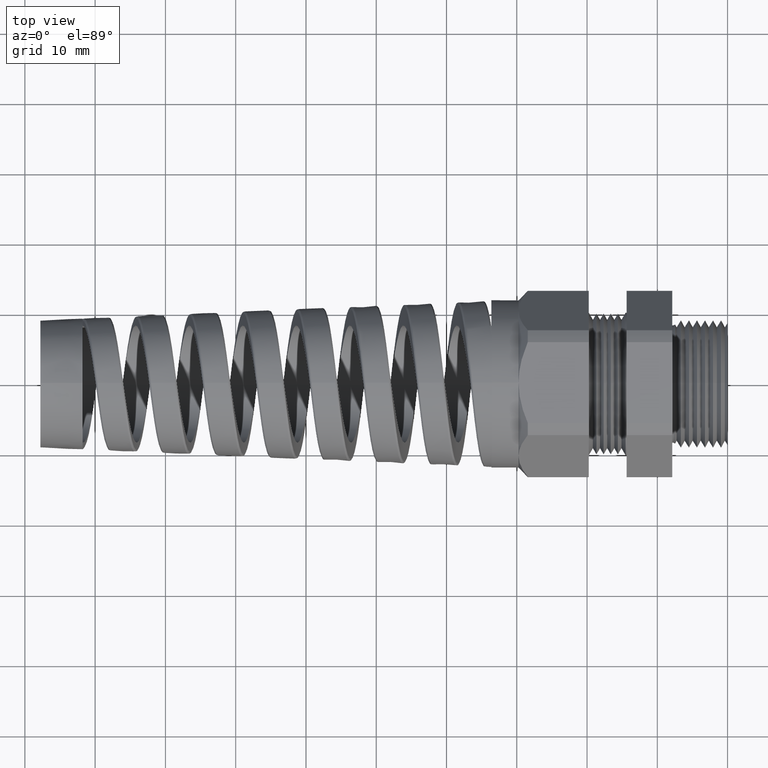
[diagram: clean part render]
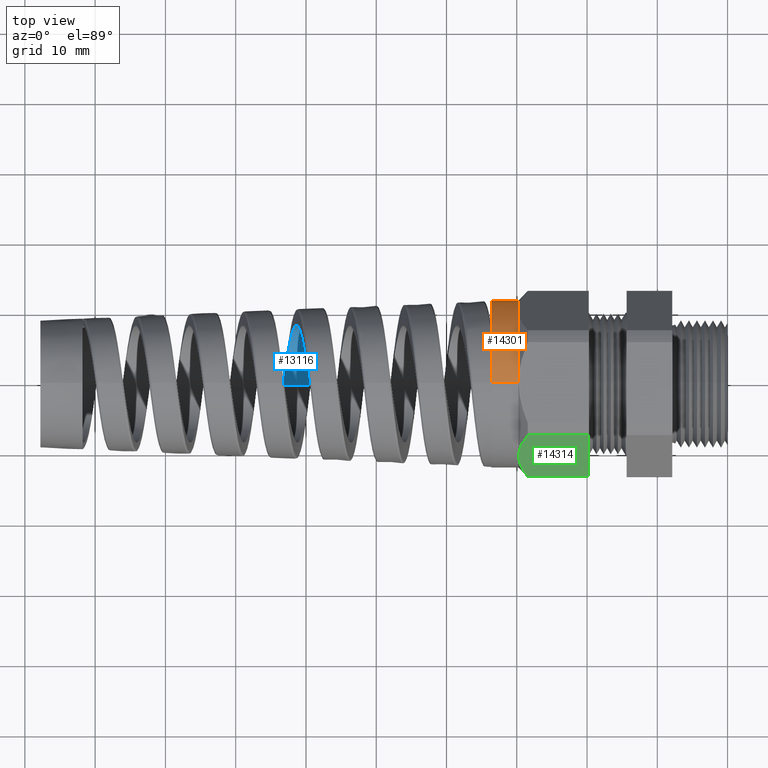
[diagram: same view with three faces highlighted in distinct colors, each labeled with its STEP entity id]
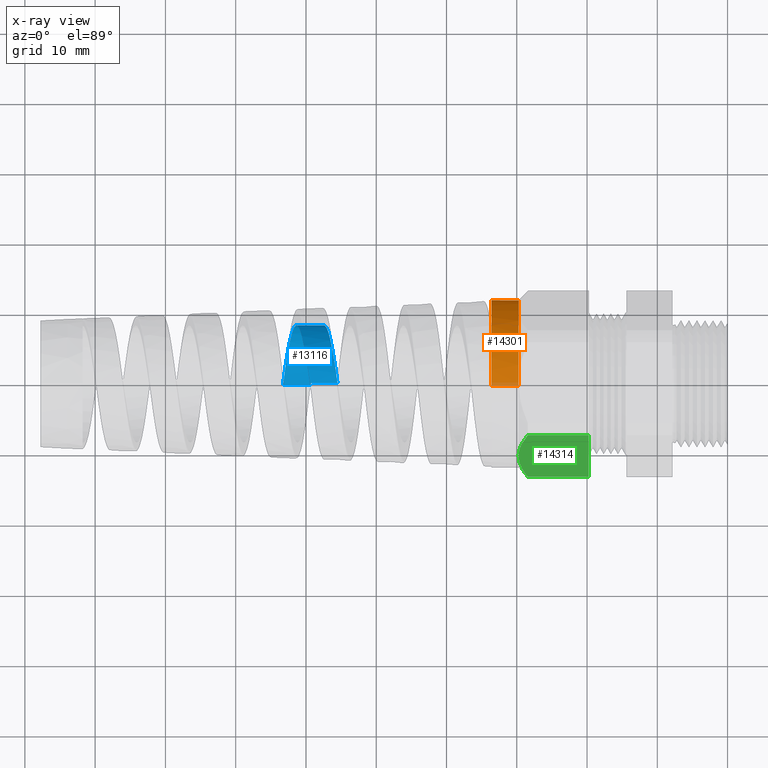
[diagram: x-ray of the same camera — body ghosted, the three highlighted faces saturated]
A machine part, top view with three faces highlighted in distinct colors.
The next image is the same camera in x-ray (body ghosted, the three faces saturated) — at least one of them is partly hidden behind the body in this view.
Their STEP definitions:

[orange] entity #14301 — the highlighted cylindrical surface (partial cylindrical patch) has radius 11.938 mm, axis along (1, 0, 0).
#12258 = CARTESIAN_POINT ( 'NONE',  ( -1.323684129229487600, 5.755839955992558400E-017, 0.4699999999999997500 ) ) ;
#12259 = CARTESIAN_POINT ( 'NONE',  ( -1.323684129229487600, 0.0000000000000000000, -0.4699999999999997500 ) ) ;
#12260 = DIRECTION ( 'NONE',  ( 1.000000000000000000, 0.0000000000000000000, 0.0000000000000000000 ) ) ;
#12261 = VECTOR ( 'NONE', #12260, 39.37007874015748100 ) ;
#12262 = CARTESIAN_POINT ( 'NONE',  ( 0.0000000000000000000, 5.755839955992559700E-017, 0.4699999999999999700 ) ) ;
#12263 = LINE ( 'NONE', #12262, #12261 ) ;
#12265 = CARTESIAN_POINT ( 'NONE',  ( -1.171259842519685000, 0.0000000000000000000, 0.4699999999999997500 ) ) ;
#12266 = CARTESIAN_POINT ( 'NONE',  ( -1.171259842519685000, 0.4070319397786862900, 0.2350000000000000400 ) ) ;
#12267 = DIRECTION ( 'NONE',  ( 0.0000000000000000000, 0.0000000000000000000, -1.000000000000000000 ) ) ;
#12268 = DIRECTION ( 'NONE',  ( 1.000000000000000000, 0.0000000000000000000, 0.0000000000000000000 ) ) ;
#12269 = CARTESIAN_POINT ( 'NONE',  ( -1.171259842519685000, 0.0000000000000000000, 0.0000000000000000000 ) ) ;
#12270 = AXIS2_PLACEMENT_3D ( 'NONE', #12269, #12268, #12267 ) ;
#12271 = CIRCLE ( 'NONE', #12270, 0.4699999999999999700 ) ;
#12272 = DIRECTION ( 'NONE',  ( 0.0000000000000000000, 0.0000000000000000000, -1.000000000000000000 ) ) ;
#12273 = DIRECTION ( 'NONE',  ( 1.000000000000000000, 0.0000000000000000000, 0.0000000000000000000 ) ) ;
#12274 = CARTESIAN_POINT ( 'NONE',  ( -1.171259842519685000, 0.0000000000000000000, 0.0000000000000000000 ) ) ;
#12275 = AXIS2_PLACEMENT_3D ( 'NONE', #12274, #12273, #12272 ) ;
#12276 = CIRCLE ( 'NONE', #12275, 0.4699999999999999700 ) ;
#12277 = CARTESIAN_POINT ( 'NONE',  ( -1.171259842519685000, 0.4070319397786865100, -0.2350000000000001300 ) ) ;
#12278 = CARTESIAN_POINT ( 'NONE',  ( -1.171259842519685000, 0.0000000000000000000, -0.4700000000000000800 ) ) ;
#12279 = DIRECTION ( 'NONE',  ( 0.0000000000000000000, 0.0000000000000000000, -1.000000000000000000 ) ) ;
#12280 = DIRECTION ( 'NONE',  ( 1.000000000000000000, 0.0000000000000000000, 0.0000000000000000000 ) ) ;
#12281 = CARTESIAN_POINT ( 'NONE',  ( -1.171259842519685000, 0.0000000000000000000, 0.0000000000000000000 ) ) ;
#12282 = AXIS2_PLACEMENT_3D ( 'NONE', #12281, #12280, #12279 ) ;
#12283 = CIRCLE ( 'NONE', #12282, 0.4699999999999999700 ) ;
#12585 = DIRECTION ( 'NONE',  ( 0.0000000000000000000, 0.0000000000000000000, 1.000000000000000000 ) ) ;
#12586 = DIRECTION ( 'NONE',  ( -1.000000000000000000, 0.0000000000000000000, 0.0000000000000000000 ) ) ;
#12587 = CARTESIAN_POINT ( 'NONE',  ( -1.323684129229487600, 0.0000000000000000000, 0.0000000000000000000 ) ) ;
#12588 = AXIS2_PLACEMENT_3D ( 'NONE', #12587, #12586, #12585 ) ;
#12589 = CIRCLE ( 'NONE', #12588, 0.4699999999999997500 ) ;
#12603 = LINE ( 'NONE', #12681, #12680 ) ;
#12671 = FACE_OUTER_BOUND ( 'NONE', #14295, .T. ) ;
#12679 = DIRECTION ( 'NONE',  ( 1.000000000000000000, 0.0000000000000000000, 0.0000000000000000000 ) ) ;
#12680 = VECTOR ( 'NONE', #12679, 39.37007874015748100 ) ;
#12681 = CARTESIAN_POINT ( 'NONE',  ( 0.0000000000000000000, 0.0000000000000000000, -0.4699999999999999700 ) ) ;
#12688 = DIRECTION ( 'NONE',  ( 0.0000000000000000000, 0.0000000000000000000, -1.000000000000000000 ) ) ;
#12689 = DIRECTION ( 'NONE',  ( 1.000000000000000000, 0.0000000000000000000, 0.0000000000000000000 ) ) ;
#12690 = CARTESIAN_POINT ( 'NONE',  ( 0.0000000000000000000, 0.0000000000000000000, 0.0000000000000000000 ) ) ;
#12691 = AXIS2_PLACEMENT_3D ( 'NONE', #12690, #12689, #12688 ) ;
#12692 = CYLINDRICAL_SURFACE ( 'NONE', #12691, 0.4699999999999999700 ) ;
#14234 = EDGE_CURVE ( 'NONE', #14235, #14236, #12283, .T. ) ;
#14235 = VERTEX_POINT ( 'NONE', #12278 ) ;
#14236 = VERTEX_POINT ( 'NONE', #12277 ) ;
#14237 = EDGE_CURVE ( 'NONE', #14236, #14242, #12276, .T. ) ;
#14238 = ORIENTED_EDGE ( 'NONE', *, *, #14237, .F. ) ;
#14239 = EDGE_CURVE ( 'NONE', #14242, #14244, #12271, .T. ) ;
#14240 = ORIENTED_EDGE ( 'NONE', *, *, #14234, .F. ) ;
#14241 = ORIENTED_EDGE ( 'NONE', *, *, #14239, .F. ) ;
#14242 = VERTEX_POINT ( 'NONE', #12266 ) ;
#14243 = ORIENTED_EDGE ( 'NONE', *, *, #14246, .T. ) ;
#14244 = VERTEX_POINT ( 'NONE', #12265 ) ;
#14246 = EDGE_CURVE ( 'NONE', #14248, #14244, #12263, .T. ) ;
#14247 = VERTEX_POINT ( 'NONE', #12259 ) ;
#14248 = VERTEX_POINT ( 'NONE', #12258 ) ;
#14280 = ORIENTED_EDGE ( 'NONE', *, *, #14282, .F. ) ;
#14282 = EDGE_CURVE ( 'NONE', #14248, #14247, #12589, .T. ) ;
#14289 = EDGE_CURVE ( 'NONE', #14247, #14235, #12603, .T. ) ;
#14292 = ORIENTED_EDGE ( 'NONE', *, *, #14289, .F. ) ;
#14295 = EDGE_LOOP ( 'NONE', ( #14280, #14243, #14241, #14238, #14240, #14292 ) ) ;
#14301 = ADVANCED_FACE ( 'NONE', ( #12671 ), #12692, .T. ) ;

[blue] entity #13116 — the highlighted cylindrical surface (partial cylindrical patch) has radius 8.3439 mm, axis along (1, 0, 0).
#3589 = CARTESIAN_POINT ( 'NONE',  ( -2.230961883574990300, 0.2671811047384607400, 0.1914219658252807900 ) ) ;
#3590 = CARTESIAN_POINT ( 'NONE',  ( -2.235657724696037200, 0.2851181382209362900, 0.1645701800939178000 ) ) ;
#3591 = CARTESIAN_POINT ( 'NONE',  ( -2.238754781121779800, 0.2952069383697971100, 0.1456928573764771100 ) ) ;
#3592 = CARTESIAN_POINT ( 'NONE',  ( -2.245000890643994200, 0.3116639321519266100, 0.1060148034370246300 ) ) ;
#3593 = CARTESIAN_POINT ( 'NONE',  ( -2.248167417003939800, 0.3180143962495023400, 0.08507995021328114400 ) ) ;
#3594 = CARTESIAN_POINT ( 'NONE',  ( -2.254401799630770100, 0.3263741779161039000, 0.04303080454531625600 ) ) ;
#3595 = CARTESIAN_POINT ( 'NONE',  ( -2.257500912801577300, 0.3284923048429469500, 0.02171722560279667000 ) ) ;
#3596 = CARTESIAN_POINT ( 'NONE',  ( -2.262212286630106700, 0.3285038164785540300, -0.01068354418033313200 ) ) ;
#3597 = CARTESIAN_POINT ( 'NONE',  ( -2.263793208218860100, 0.3279684995812743900, -0.02155557150557561900 ) ) ;
#3598 = CARTESIAN_POINT ( 'NONE',  ( -2.266922100726154200, 0.3258555036632280200, -0.04296708173600174300 ) ) ;
#3599 = CARTESIAN_POINT ( 'NONE',  ( -2.270035390542128000, 0.3227038693249811300, -0.06416719398672542100 ) ) ;
#3600 = CARTESIAN_POINT ( 'NONE',  ( -2.273146194290540700, 0.3175085300207358100, -0.08494713411781643100 ) ) ;
#3601 = CARTESIAN_POINT ( 'NONE',  ( -2.276270611780904400, 0.3112793530012827300, -0.1055123055660403800 ) ) ;
#3602 = CARTESIAN_POINT ( 'NONE',  ( -2.277846891246349900, 0.3076281504154419500, -0.1157335949405931300 ) ) ;
#3603 = CARTESIAN_POINT ( 'NONE',  ( -2.282567334568148100, 0.2952032145861580600, -0.1457246986670235900 ) ) ;
#3604 = CARTESIAN_POINT ( 'NONE',  ( -2.285669045282460000, 0.2850836471934649600, -0.1646160639318742200 ) ) ;
#3605 = CARTESIAN_POINT ( 'NONE',  ( -2.290341605771509600, 0.2672391038707672700, -0.1913380057979515200 ) ) ;
#3606 = CARTESIAN_POINT ( 'NONE',  ( -2.291902318960721700, 0.2608435723817313400, -0.1999742533373203000 ) ) ;
#3607 = CARTESIAN_POINT ( 'NONE',  ( -2.295045475187158500, 0.2471344524386591400, -0.2166878715307490900 ) ) ;
#3608 = CARTESIAN_POINT ( 'NONE',  ( -2.296624800696569500, 0.2398293865154839400, -0.2247436761349939400 ) ) ;
#3609 = CARTESIAN_POINT ( 'NONE',  ( -2.301315149762561200, 0.2170151559034341500, -0.2475461381328063500 ) ) ;
#3610 = CARTESIAN_POINT ( 'NONE',  ( -2.304412803995601300, 0.2004710302147279800, -0.2611241158775871600 ) ) ;
#3611 = CARTESIAN_POINT ( 'NONE',  ( -2.309102116098395100, 0.1736641695762613800, -0.2790493740674560600 ) ) ;
#3612 = CARTESIAN_POINT ( 'NONE',  ( -2.310680565901149600, 0.1643439124811548500, -0.2846405386552425800 ) ) ;
#3613 = CARTESIAN_POINT ( 'NONE',  ( -2.313824884988728800, 0.1452709233747789000, -0.2948313359149586400 ) ) ;
#3614 = CARTESIAN_POINT ( 'NONE',  ( -2.315385965960846900, 0.1355509444161015500, -0.2994210070962924900 ) ) ;
#3615 = CARTESIAN_POINT ( 'NONE',  ( -2.320058925706633500, 0.1058586630108827000, -0.3117133066716418800 ) ) ;
#3616 = CARTESIAN_POINT ( 'NONE',  ( -2.323160284519648000, 0.08535893539667452300, -0.3179530106662405400 ) ) ;
#3617 = CARTESIAN_POINT ( 'NONE',  ( -2.327879026030319900, 0.05353305771847249200, -0.3242891694803506900 ) ) ;
#3618 = CARTESIAN_POINT ( 'NONE',  ( -2.329456394896390700, 0.04278866714660013000, -0.3258786068882145700 ) ) ;
#3619 = CARTESIAN_POINT ( 'NONE',  ( -2.332581541986379100, 0.02139856015747303900, -0.3279784110071470300 ) ) ;
#3620 = CARTESIAN_POINT ( 'NONE',  ( -2.334137105612645900, 0.01070031934733970000, -0.3285000000000000100 ) ) ;
#3621 = CARTESIAN_POINT ( 'NONE',  ( -2.335693058987289300, -9.177301853715885800E-016, -0.3285000000000000700 ) ) ;
#3623 = B_SPLINE_CURVE_WITH_KNOTS ( 'NONE', 3,
 ( #3621, #3620, #3619, #3618, #3617, #3616, #3615, #3614, #3613, #3612, #3611, #3610, #3609, #3608, #3607, #3606, #3605, #3604, #3603, #3602, #3601, #3600, #3599, #3598, #3597, #3596, #3595, #3594, #3593, #3592, #3591, #3590, #3589, #3662, #3661, #3660, #3659, #3658, #3657, #3656, #3655, #3654, #3653, #3652, #3651, #3650, #3649 ),
 .UNSPECIFIED., .F., .F.,
 ( 4, 2, 2, 2, 2, 2, 2, 2, 2, 2, 2, 1, 2, 2, 2, 2, 2, 2, 2, 2, 2, 2, 2, 4 ),
 ( 0.2245983533964642800, 0.2254225447136848100, 0.2262467360309053400, 0.2278951186653464000, 0.2287193099825669300, 0.2295435012997874600, 0.2311918839342285100, 0.2320160752514490700, 0.2328402665686696000, 0.2344886492031106600, 0.2353128405203311900, 0.2361370318375517200, 0.2369612231547722500, 0.2377854144719928100, 0.2394337971064338700, 0.2410821797408749200, 0.2427305623753159800, 0.2435547536925365400, 0.2443789450097570700, 0.2460273276441981300, 0.2476757102786392200, 0.2484999015958597500, 0.2493240929130802800, 0.2509724755475213300 ),
 .UNSPECIFIED. ) ;
#3628 = CARTESIAN_POINT ( 'NONE',  ( -2.362087117684623600, 0.1355519576617637000, 0.2994205738214222300 ) ) ;
#3629 = CARTESIAN_POINT ( 'NONE',  ( -2.357418026489027400, 0.1058577203844208700, 0.3117137245117050400 ) ) ;
#3630 = CARTESIAN_POINT ( 'NONE',  ( -2.354319748218260500, 0.08535928037724957500, 0.3179526076969334000 ) ) ;
#3631 = CARTESIAN_POINT ( 'NONE',  ( -2.349606502386726500, 0.05354020970870437100, 0.3242879126891695100 ) ) ;
#3632 = CARTESIAN_POINT ( 'NONE',  ( -2.348030030451276700, 0.04279205943229513800, 0.3258782080938767400 ) ) ;
#3633 = CARTESIAN_POINT ( 'NONE',  ( -2.344907253748393500, 0.02139915036048729500, 0.3279784188399936800 ) ) ;
#3634 = CARTESIAN_POINT ( 'NONE',  ( -2.343352929261683000, 0.01070025476865916000, 0.3284999999999997900 ) ) ;
#3635 = CARTESIAN_POINT ( 'NONE',  ( -2.341798384752815700, -2.249239300252285600E-015, 0.3285000000000000700 ) ) ;
#3636 = FACE_OUTER_BOUND ( 'NONE', #13117, .T. ) ;
#3637 = B_SPLINE_CURVE_WITH_KNOTS ( 'NONE', 3,
 ( #3635, #3634, #3633, #3632, #3631, #3630, #3629, #3628, #3708, #3707, #3706, #3705, #3704, #3703, #3702, #3701, #3700, #3699, #3698, #3697, #3696, #3695, #3694, #3693, #3692, #3691, #3690, #3689, #3688, #3687, #3686, #3685, #3684, #3683, #3682, #3681, #3680, #3679, #3678, #3677, #3676, #3675, #3674, #3673, #3672, #3671, #3670 ),
 .UNSPECIFIED., .F., .F.,
 ( 4, 2, 2, 2, 2, 2, 2, 2, 2, 2, 2, 1, 2, 2, 2, 2, 2, 2, 2, 2, 2, 2, 2, 4 ),
 ( 0.2045366304479880000, 0.2053605444519933700, 0.2061844584559987300, 0.2078322864640094200, 0.2086562004680147800, 0.2094801144720201400, 0.2111279424800308300, 0.2119518564840361900, 0.2127757704880415500, 0.2144235984960522500, 0.2152475125000576100, 0.2160714265040629700, 0.2168953405080683000, 0.2177192545120736600, 0.2193670825200843600, 0.2210149105280950800, 0.2226627385361058000, 0.2234866525401111300, 0.2243105665441164900, 0.2259583945521271800, 0.2276062225601379100, 0.2284301365641432400, 0.2292540505681486300, 0.2309018785761593200 ),
 .UNSPECIFIED. ) ;
#3649 = CARTESIAN_POINT ( 'NONE',  ( -2.185624561045124400, 2.097931203759451100E-013, 0.3284999999999999000 ) ) ;
#3650 = CARTESIAN_POINT ( 'NONE',  ( -2.188743609871396200, 0.02145051344386421700, 0.3284999999999862500 ) ) ;
#3651 = CARTESIAN_POINT ( 'NONE',  ( -2.191842294983461900, 0.04276008570535944100, 0.3264185787067627700 ) ) ;
#3652 = CARTESIAN_POINT ( 'NONE',  ( -2.196547404508556700, 0.07449665781389004600, 0.3201231229358140800 ) ) ;
#3653 = CARTESIAN_POINT ( 'NONE',  ( -2.198130086958101100, 0.08506781764110646300, 0.3174771136942456900 ) ) ;
#3654 = CARTESIAN_POINT ( 'NONE',  ( -2.201262228200690200, 0.1056807467746027400, 0.3112231210546733100 ) ) ;
#3655 = CARTESIAN_POINT ( 'NONE',  ( -2.202819556211488300, 0.1157764073466552200, 0.3076078716259554300 ) ) ;
#3656 = CARTESIAN_POINT ( 'NONE',  ( -2.207487930265024100, 0.1454399276880429500, 0.2953262503935144600 ) ) ;
#3657 = CARTESIAN_POINT ( 'NONE',  ( -2.210603313211125400, 0.1644384942283444200, 0.2852055146770621200 ) ) ;
#3658 = CARTESIAN_POINT ( 'NONE',  ( -2.216908286853970900, 0.2004918871843902300, 0.2611229732511768400 ) ) ;
#3659 = CARTESIAN_POINT ( 'NONE',  ( -2.220011055371587700, 0.2170552043751473000, 0.2475031134217100000 ) ) ;
#3660 = CARTESIAN_POINT ( 'NONE',  ( -2.224681416848732300, 0.2397748865328382400, 0.2247996430448872300 ) ) ;
#3661 = CARTESIAN_POINT ( 'NONE',  ( -2.226240720986161200, 0.2469913841911982600, 0.2168501395448607900 ) ) ;
#3662 = CARTESIAN_POINT ( 'NONE',  ( -2.229379642599579100, 0.2606920734501076400, 0.2001708513385336300 ) ) ;
#3665 = DIRECTION ( 'NONE',  ( 0.0000000000000000000, 0.0000000000000000000, -1.000000000000000000 ) ) ;
#3666 = DIRECTION ( 'NONE',  ( 1.000000000000000000, 0.0000000000000000000, 0.0000000000000000000 ) ) ;
#3667 = CARTESIAN_POINT ( 'NONE',  ( 0.0000000000000000000, 0.0000000000000000000, 0.0000000000000000000 ) ) ;
#3668 = AXIS2_PLACEMENT_3D ( 'NONE', #3667, #3666, #3665 ) ;
#3669 = CYLINDRICAL_SURFACE ( 'NONE', #3668, 0.3284999999999999000 ) ;
#3670 = CARTESIAN_POINT ( 'NONE',  ( -2.491729826747311800, 2.258245861606397300E-013, -0.3284999999999999000 ) ) ;
#3671 = CARTESIAN_POINT ( 'NONE',  ( -2.488613199178623300, 0.02145265726936103000, -0.3284999999999852500 ) ) ;
#3672 = CARTESIAN_POINT ( 'NONE',  ( -2.485517370961624700, 0.04276129823344889500, -0.3264181563380710900 ) ) ;
#3673 = CARTESIAN_POINT ( 'NONE',  ( -2.480817673741412000, 0.07449205422957001800, -0.3201241270352761000 ) ) ;
#3674 = CARTESIAN_POINT ( 'NONE',  ( -2.479236401103085600, 0.08506399564909898600, -0.3174781995135982400 ) ) ;
#3675 = CARTESIAN_POINT ( 'NONE',  ( -2.476106603411266400, 0.1056804486990884200, -0.3112232852550485000 ) ) ;
#3676 = CARTESIAN_POINT ( 'NONE',  ( -2.474550491769278900, 0.1157770473963431900, -0.3076076398410071400 ) ) ;
#3677 = CARTESIAN_POINT ( 'NONE',  ( -2.469886096422459200, 0.1454412587577514100, -0.2953256328537041700 ) ) ;
#3678 = CARTESIAN_POINT ( 'NONE',  ( -2.466775235352632700, 0.1644294854401270300, -0.2852111038732498300 ) ) ;
#3679 = CARTESIAN_POINT ( 'NONE',  ( -2.460474836564262400, 0.2004919216550420400, -0.2611233785124785200 ) ) ;
#3680 = CARTESIAN_POINT ( 'NONE',  ( -2.457374599832118800, 0.2170564214954589200, -0.2475019537040922300 ) ) ;
#3681 = CARTESIAN_POINT ( 'NONE',  ( -2.452708570887292400, 0.2397749289626176800, -0.2247995723770640500 ) ) ;
#3682 = CARTESIAN_POINT ( 'NONE',  ( -2.451150806496626100, 0.2469905354656621000, -0.2168510026045427600 ) ) ;
#3683 = CARTESIAN_POINT ( 'NONE',  ( -2.448015297963468400, 0.2606887480336236900, -0.2001750698485497100 ) ) ;
#3684 = CARTESIAN_POINT ( 'NONE',  ( -2.446434382559541800, 0.2671789202293210500, -0.1914251120078793700 ) ) ;
#3685 = CARTESIAN_POINT ( 'NONE',  ( -2.441742316922374600, 0.2851190042928253800, -0.1645691316122447100 ) ) ;
#3686 = CARTESIAN_POINT ( 'NONE',  ( -2.438647984086824900, 0.2952075286533488700, -0.1456912681833421900 ) ) ;
#3687 = CARTESIAN_POINT ( 'NONE',  ( -2.432408143721989100, 0.3116625964157017600, -0.1060181899199927500 ) ) ;
#3688 = CARTESIAN_POINT ( 'NONE',  ( -2.429244239649458200, 0.3180140023598117000, -0.08508187858906658700 ) ) ;
#3689 = CARTESIAN_POINT ( 'NONE',  ( -2.423015334998323700, 0.3263745102064024000, -0.04302918600998486400 ) ) ;
#3690 = CARTESIAN_POINT ( 'NONE',  ( -2.419919141129013100, 0.3284920529210244000, -0.02171674568928014600 ) ) ;
#3691 = CARTESIAN_POINT ( 'NONE',  ( -2.415212863400382700, 0.3285039403625558700, 0.01067755286452892600 ) ) ;
#3692 = CARTESIAN_POINT ( 'NONE',  ( -2.413632956153959800, 0.3279687946351097500, 0.02155188846128300000 ) ) ;
#3693 = CARTESIAN_POINT ( 'NONE',  ( -2.410506458364530600, 0.3258556168055853900, 0.04296662829343121700 ) ) ;
#3694 = CARTESIAN_POINT ( 'NONE',  ( -2.407396004741715300, 0.3227036242220061600, 0.06416842468957775800 ) ) ;
#3695 = CARTESIAN_POINT ( 'NONE',  ( -2.404288283421447000, 0.3175084899560356400, 0.08494710649118346300 ) ) ;
#3696 = CARTESIAN_POINT ( 'NONE',  ( -2.401167088615232100, 0.3112802148206610400, 0.1055096202087260500 ) ) ;
#3697 = CARTESIAN_POINT ( 'NONE',  ( -2.399592825765724400, 0.3076308083151493800, 0.1157267501876303600 ) ) ;
#3698 = CARTESIAN_POINT ( 'NONE',  ( -2.394875535246324900, 0.2952036216897536100, 0.1457245740283431300 ) ) ;
#3699 = CARTESIAN_POINT ( 'NONE',  ( -2.391776446211380000, 0.2850829409852881400, 0.1646171122562647100 ) ) ;
#3700 = CARTESIAN_POINT ( 'NONE',  ( -2.387108660701306600, 0.2672395223300464400, 0.1913373837672916200 ) ) ;
#3701 = CARTESIAN_POINT ( 'NONE',  ( -2.385549611364363300, 0.2608448344960660500, 0.1999724868239481100 ) ) ;
#3702 = CARTESIAN_POINT ( 'NONE',  ( -2.382409921420777900, 0.2471387593658940500, 0.2166828483958084000 ) ) ;
#3703 = CARTESIAN_POINT ( 'NONE',  ( -2.380831508448428400, 0.2398318460032160500, 0.2247411238390066600 ) ) ;
#3704 = CARTESIAN_POINT ( 'NONE',  ( -2.376144672899746200, 0.2170145495659651900, 0.2475469322847719500 ) ) ;
#3705 = CARTESIAN_POINT ( 'NONE',  ( -2.373049868433164900, 0.2004701081743490200, 0.2611245829469798200 ) ) ;
#3706 = CARTESIAN_POINT ( 'NONE',  ( -2.368365680796354200, 0.1736669983511771900, 0.2790475572485082200 ) ) ;
#3707 = CARTESIAN_POINT ( 'NONE',  ( -2.366789231070694400, 0.1643500465964983500, 0.2846370823321162600 ) ) ;
#3708 = CARTESIAN_POINT ( 'NONE',  ( -2.363647067586947400, 0.1452732388960037100, 0.2948302774741355400 ) ) ;
#12122 = CARTESIAN_POINT ( 'NONE',  ( -2.491729826747311800, 2.258245861606397300E-013, -0.3284999999999999000 ) ) ;
#12124 = CARTESIAN_POINT ( 'NONE',  ( -2.341798384752815700, -2.249239300252285600E-015, 0.3285000000000000700 ) ) ;
#12375 = CARTESIAN_POINT ( 'NONE',  ( -2.335693058987289300, -9.177301853715885800E-016, -0.3285000000000000700 ) ) ;
#12376 = DIRECTION ( 'NONE',  ( 1.000000000000000000, 0.0000000000000000000, 0.0000000000000000000 ) ) ;
#12377 = VECTOR ( 'NONE', #12376, 39.37007874015748100 ) ;
#12378 = CARTESIAN_POINT ( 'NONE',  ( 0.0000000000000000000, 0.0000000000000000000, -0.3284999999999999000 ) ) ;
#12379 = LINE ( 'NONE', #12378, #12377 ) ;
#12947 = CARTESIAN_POINT ( 'NONE',  ( -2.185624561045124400, 2.097931203759451100E-013, 0.3284999999999999000 ) ) ;
#12965 = DIRECTION ( 'NONE',  ( 1.000000000000000000, 0.0000000000000000000, 0.0000000000000000000 ) ) ;
#12966 = VECTOR ( 'NONE', #12965, 39.37007874015748100 ) ;
#12967 = CARTESIAN_POINT ( 'NONE',  ( 0.0000000000000000000, 4.022964735199054400E-017, 0.3284999999999999000 ) ) ;
#12968 = LINE ( 'NONE', #12967, #12966 ) ;
#13096 = ORIENTED_EDGE ( 'NONE', *, *, #14260, .T. ) ;
#13097 = EDGE_CURVE ( 'NONE', #14261, #14337, #3623, .T. ) ;
#13098 = ORIENTED_EDGE ( 'NONE', *, *, #13097, .T. ) ;
#13109 = ORIENTED_EDGE ( 'NONE', *, *, #13112, .T. ) ;
#13112 = EDGE_CURVE ( 'NONE', #14217, #14219, #3637, .T. ) ;
#13115 = ORIENTED_EDGE ( 'NONE', *, *, #14338, .F. ) ;
#13116 = ADVANCED_FACE ( 'NONE', ( #3636 ), #3669, .F. ) ;
#13117 = EDGE_LOOP ( 'NONE', ( #13115, #13109, #13096, #13098 ) ) ;
#14217 = VERTEX_POINT ( 'NONE', #12124 ) ;
#14219 = VERTEX_POINT ( 'NONE', #12122 ) ;
#14260 = EDGE_CURVE ( 'NONE', #14219, #14261, #12379, .T. ) ;
#14261 = VERTEX_POINT ( 'NONE', #12375 ) ;
#14337 = VERTEX_POINT ( 'NONE', #12947 ) ;
#14338 = EDGE_CURVE ( 'NONE', #14217, #14337, #12968, .T. ) ;

[green] entity #14314 — the highlighted planar face has unit normal (0, -0.866, 0.5).
#2271 = DIRECTION ( 'NONE',  ( -1.000000000000000000, 0.0000000000000000000, 0.0000000000000000000 ) ) ;
#2272 = VECTOR ( 'NONE', #2271, 39.37007874015748100 ) ;
#2273 = CARTESIAN_POINT ( 'NONE',  ( 0.0000000000000000000, -0.5202473208008777700, 0.03890520787129464500 ) ) ;
#2274 = LINE ( 'NONE', #2273, #2272 ) ;
#2279 = CARTESIAN_POINT ( 'NONE',  ( -1.119559842519684900, -0.5202473208008777700, 0.03890520787129464500 ) ) ;
#2280 = CARTESIAN_POINT ( 'NONE',  ( -1.135213252014092300, -0.5022144712456754200, 0.07013901950615092400 ) ) ;
#2281 = CARTESIAN_POINT ( 'NONE',  ( -1.148318125580268400, -0.4835762490957482000, 0.1024213672325802500 ) ) ;
#2282 = CARTESIAN_POINT ( 'NONE',  ( -1.166314174339441400, -0.4458197490082085300, 0.1678175437001783500 ) ) ;
#2283 = CARTESIAN_POINT ( 'NONE',  ( -1.171259842519684700, -0.4266212606411439200, 0.2010703009804539500 ) ) ;
#2284 = CARTESIAN_POINT ( 'NONE',  ( -1.171259842519685000, -0.4070319397786862400, 0.2349999999999998500 ) ) ;
#2287 = CARTESIAN_POINT ( 'NONE',  ( -1.119559842519684900, -0.5202473208008777700, 0.03890520787129464500 ) ) ;
#2288 = B_SPLINE_CURVE_WITH_KNOTS ( 'NONE', 3,
 ( #2284, #2283, #2282, #2281, #2280, #2279 ),
 .UNSPECIFIED., .F., .F.,
 ( 4, 2, 4 ),
 ( 0.005903107334592320300, 0.008852512982428784000, 0.01180191863026524900 ),
 .UNSPECIFIED. ) ;
#2289 = DIRECTION ( 'NONE',  ( 0.0000000000000000000, -0.4999999999999996100, -0.8660254037844388200 ) ) ;
#2290 = VECTOR ( 'NONE', #2289, 39.37007874015748900 ) ;
#2291 = CARTESIAN_POINT ( 'NONE',  ( -0.7775590551181100800, -0.3066569397786864100, 0.4088545998097258800 ) ) ;
#2292 = LINE ( 'NONE', #2291, #2290 ) ;
#2293 = CARTESIAN_POINT ( 'NONE',  ( -0.7775590551181100800, -0.5202473208008777700, 0.03890520787129464500 ) ) ;
#7984 = ORIENTED_EDGE ( 'NONE', *, *, #7986, .F. ) ;
#7985 = VERTEX_POINT ( 'NONE', #2293 ) ;
#7986 = EDGE_CURVE ( 'NONE', #14296, #7985, #2292, .T. ) ;
#7987 = EDGE_CURVE ( 'NONE', #14315, #7989, #2288, .T. ) ;
#7988 = ORIENTED_EDGE ( 'NONE', *, *, #7991, .F. ) ;
#7989 = VERTEX_POINT ( 'NONE', #2287 ) ;
#7991 = EDGE_CURVE ( 'NONE', #7985, #7989, #2274, .T. ) ;
#7992 = ORIENTED_EDGE ( 'NONE', *, *, #7987, .T. ) ;
#12672 = CARTESIAN_POINT ( 'NONE',  ( -0.7775590551181100800, -0.2938165587564947100, 0.4310947921287050500 ) ) ;
#12812 = CARTESIAN_POINT ( 'NONE',  ( -1.171259842519685000, -0.4070319397786862400, 0.2349999999999998500 ) ) ;
#12813 = DIRECTION ( 'NONE',  ( 0.0000000000000000000, -0.4999999999999996100, -0.8660254037844388200 ) ) ;
#12814 = DIRECTION ( 'NONE',  ( 0.0000000000000000000, -0.8660254037844388200, 0.4999999999999996100 ) ) ;
#12815 = CARTESIAN_POINT ( 'NONE',  ( 0.0000000000000000000, -0.5202473208008777700, 0.03890520787129467300 ) ) ;
#12816 = AXIS2_PLACEMENT_3D ( 'NONE', #12815, #12814, #12813 ) ;
#12817 = PLANE ( 'NONE',  #12816 ) ;
#12818 = FACE_OUTER_BOUND ( 'NONE', #14310, .T. ) ;
#12821 = CARTESIAN_POINT ( 'NONE',  ( -1.171259842519685000, -0.4070319397786862400, 0.2349999999999998500 ) ) ;
#12822 = CARTESIAN_POINT ( 'NONE',  ( -1.171259842519684500, -0.4021312490570416200, 0.2434882453220694200 ) ) ;
#12823 = CARTESIAN_POINT ( 'NONE',  ( -1.170949707841999700, -0.3971857355050538200, 0.2520541260636329800 ) ) ;
#12824 = CARTESIAN_POINT ( 'NONE',  ( -1.169717912134560900, -0.3873598765596236700, 0.2690730129851233700 ) ) ;
#12825 = CARTESIAN_POINT ( 'NONE',  ( -1.168800279744782100, -0.3824845463488701400, 0.2775173326138241600 ) ) ;
#12826 = CARTESIAN_POINT ( 'NONE',  ( -1.165196814473601300, -0.3679645453500630700, 0.3026667120697089100 ) ) ;
#12827 = CARTESIAN_POINT ( 'NONE',  ( -1.161660148414887600, -0.3584258972266239900, 0.3191881352550265900 ) ) ;
#12828 = CARTESIAN_POINT ( 'NONE',  ( -1.148116508002164000, -0.3301755151959548900, 0.3681192322653759100 ) ) ;
#12829 = CARTESIAN_POINT ( 'NONE',  ( -1.135193888195421100, -0.3118271010418953200, 0.3998996178185232300 ) ) ;
#12830 = CARTESIAN_POINT ( 'NONE',  ( -1.119559842519684900, -0.2938165587564947100, 0.4310947921287050500 ) ) ;
#12833 = B_SPLINE_CURVE_WITH_KNOTS ( 'NONE', 3,
 ( #12830, #12829, #12828, #12827, #12826, #12825, #12824, #12823, #12822, #12821 ),
 .UNSPECIFIED., .F., .F.,
 ( 4, 2, 2, 2, 4 ),
 ( 2.483251536686118000E-007, 0.002951677829872996900, 0.004427392582232659300, 0.005165249958412490200, 0.005903107334592320300 ),
 .UNSPECIFIED. ) ;
#12858 = CARTESIAN_POINT ( 'NONE',  ( -1.119559842519684900, -0.2938165587564947100, 0.4310947921287050500 ) ) ;
#12859 = DIRECTION ( 'NONE',  ( -1.000000000000000000, 0.0000000000000000000, 0.0000000000000000000 ) ) ;
#12860 = VECTOR ( 'NONE', #12859, 39.37007874015748100 ) ;
#12861 = CARTESIAN_POINT ( 'NONE',  ( 0.0000000000000000000, -0.2938165587564947100, 0.4310947921287050500 ) ) ;
#12862 = LINE ( 'NONE', #12861, #12860 ) ;
#14296 = VERTEX_POINT ( 'NONE', #12672 ) ;
#14310 = EDGE_LOOP ( 'NONE', ( #14316, #14311, #7992, #7988, #7984 ) ) ;
#14311 = ORIENTED_EDGE ( 'NONE', *, *, #14312, .T. ) ;
#14312 = EDGE_CURVE ( 'NONE', #14322, #14315, #12833, .T. ) ;
#14314 = ADVANCED_FACE ( 'NONE', ( #12818 ), #12817, .T. ) ;
#14315 = VERTEX_POINT ( 'NONE', #12812 ) ;
#14316 = ORIENTED_EDGE ( 'NONE', *, *, #14320, .T. ) ;
#14320 = EDGE_CURVE ( 'NONE', #14296, #14322, #12862, .T. ) ;
#14322 = VERTEX_POINT ( 'NONE', #12858 ) ;